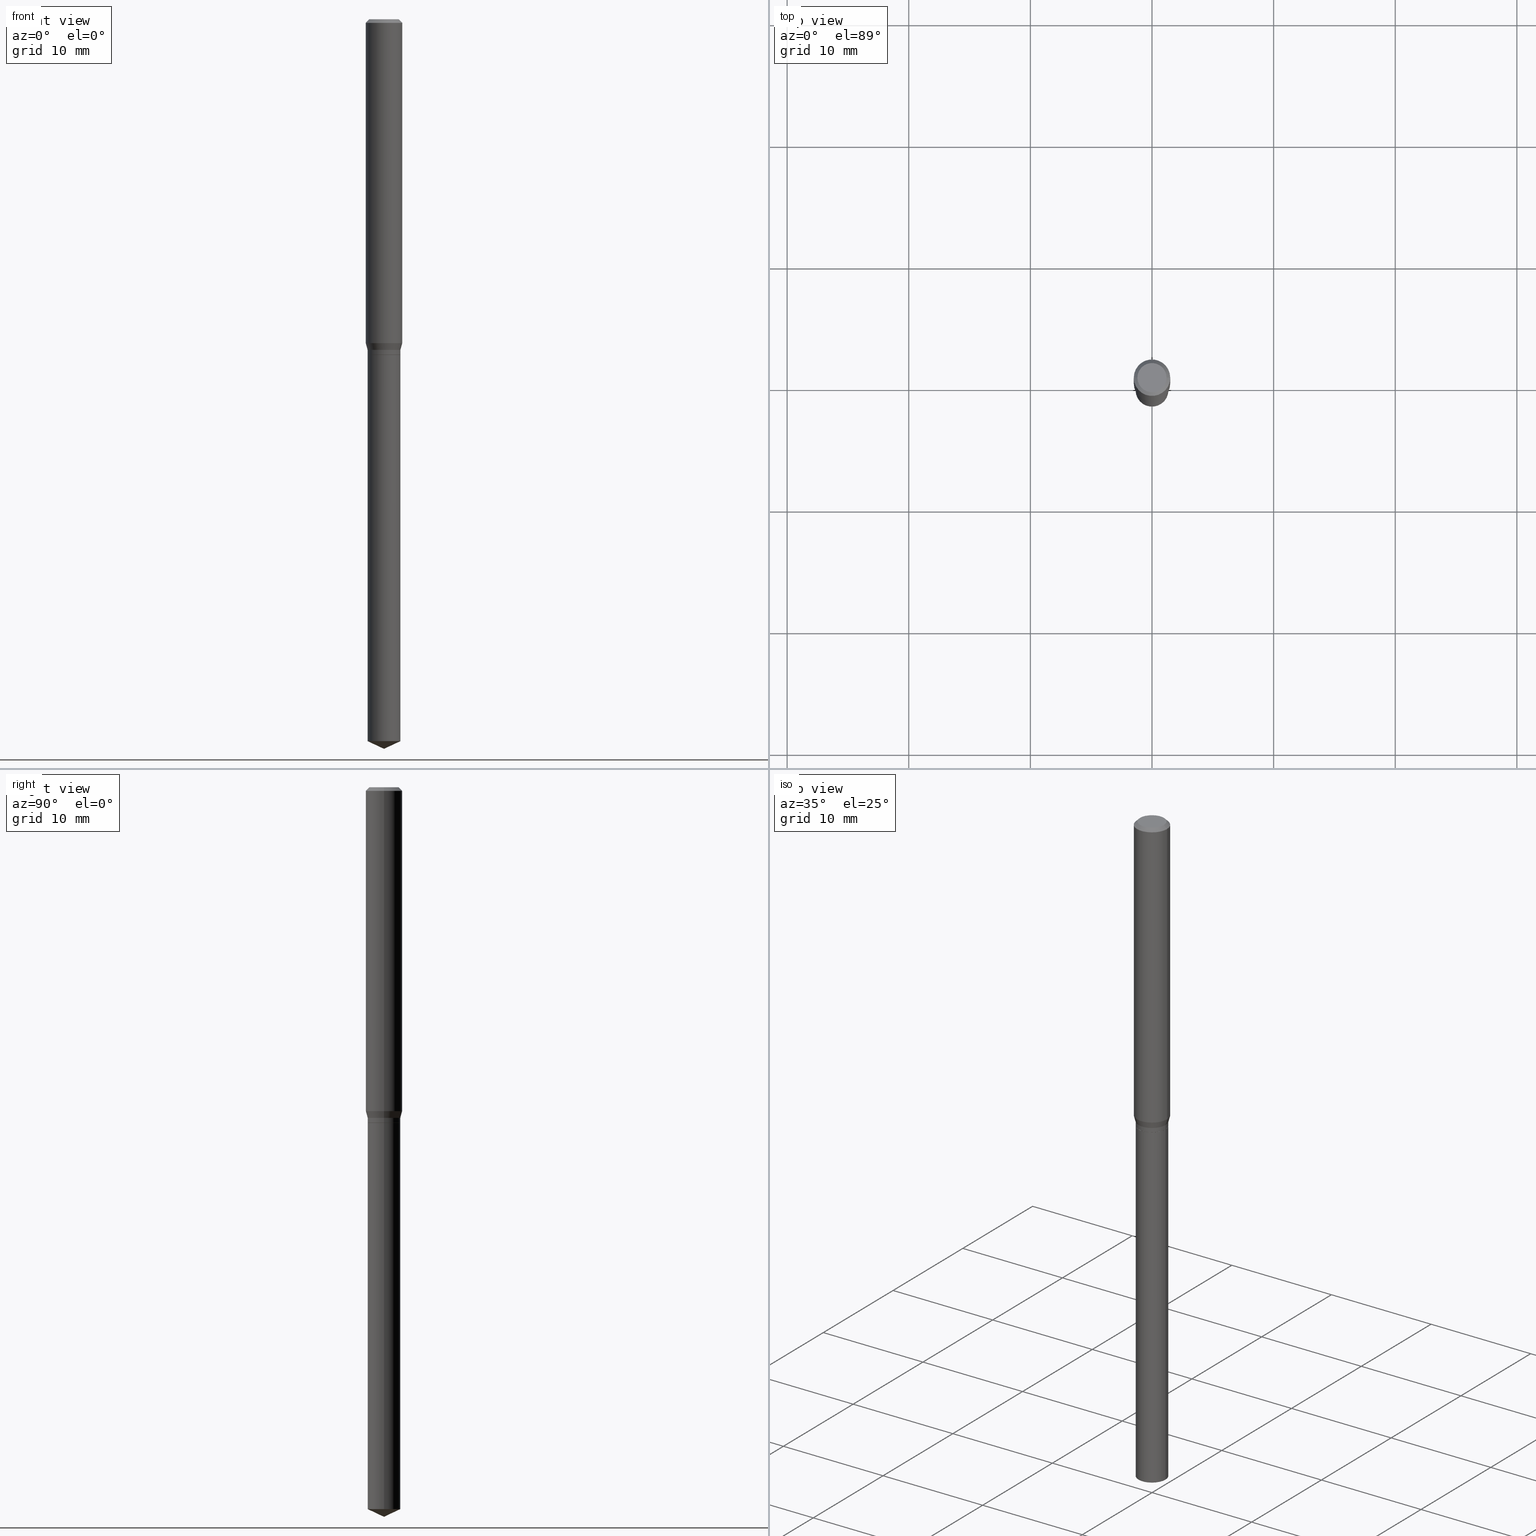
[diagram: canonical four-view strip — front | top / right | iso, engineering-drawing reading convention]
A machine part, canonical four-view strip (front | top / right | iso — engineering-drawing reading convention). The complete STEP part file that produces these views, byte-faithful:
ISO-10303-21;
HEADER;
FILE_DESCRIPTION (( 'STEP AP203' ),
    '1' );
FILE_NAME ('08398.STEP',
    '2024-04-24T14:54:19',
    ( '' ),
    ( '' ),
    'SwSTEP 2.0',
    'SolidWorks 2023',
    '' );
FILE_SCHEMA (( 'CONFIG_CONTROL_DESIGN' ));
ENDSEC;

DATA;
#1 = LINE ( 'NONE', #380, #424 ) ;
#2 = CIRCLE ( 'NONE', #256, 0.05905000000000013016 ) ;
#3 = VECTOR ( 'NONE', #301, 39.37007874015748143 ) ;
#4 = CARTESIAN_POINT ( 'NONE',  ( 0.000000000000000000, 0.000000000000000000, 0.000000000000000000 ) ) ;
#5 = DIRECTION ( 'NONE',  ( 0.7071067811865452413, -7.319954787623248157E-15, -0.7071067811865497932 ) ) ;
#6 = DIRECTION ( 'NONE',  ( -2.445468806185136877E-29, 3.491481338843145188E-15, 1.000000000000000000 ) ) ;
#7 = LINE ( 'NONE', #280, #381 ) ;
#8 = AXIS2_PLACEMENT_3D ( 'NONE', #292, #440, #435 ) ;
#9 = PERSON_AND_ORGANIZATION ( #427, #17 ) ;
#10 = FACE_OUTER_BOUND ( 'NONE', #185, .T. ) ;
#11 = VERTEX_POINT ( 'NONE', #113 ) ;
#12 = CC_DESIGN_DATE_AND_TIME_ASSIGNMENT ( #461, #382, ( #336 ) ) ;
#13 = CARTESIAN_POINT ( 'NONE',  ( 0.05315000000000000280, -4.108775239550612516E-15, -1.070500000000000007 ) ) ;
#14 = CALENDAR_DATE ( 2024, 24, 4 ) ;
#15 = CARTESIAN_POINT ( 'NONE',  ( 4.132873053354867254E-48, -5.900647395337818946E-34, -1.690012582823346072E-19 ) ) ;
#16 = ADVANCED_FACE ( 'NONE', ( #383 ), #152, .T. ) ;
#17 = ORGANIZATION ( 'UNSPECIFIED', 'UNSPECIFIED', '' ) ;
#18 = CARTESIAN_POINT ( 'NONE',  ( -0.05315000000000000280, -3.386861715484185530E-15, -1.070500000000000007 ) ) ;
#19 = CARTESIAN_POINT ( 'NONE',  ( -0.05315000000000000280, -3.386861715484185530E-15, -1.085899999999999643 ) ) ;
#20 = EDGE_LOOP ( 'NONE', ( #296, #406, #270, #483 ) ) ;
#21 = DIRECTION ( 'NONE',  ( 1.000000000000000000, -6.982962677686268288E-15, 0.000000000000000000 ) ) ;
#22 = EDGE_LOOP ( 'NONE', ( #252, #150, #488, #299 ) ) ;
#23 = CARTESIAN_POINT ( 'NONE',  ( 2.656757311039531549E-29, -3.793145326519192049E-15, -1.086399999999999588 ) ) ;
#24 = VECTOR ( 'NONE', #331, 39.37007874015748143 ) ;
#25 = ORIENTED_EDGE ( 'NONE', *, *, #309, .F. ) ;
#26 = DIRECTION ( 'NONE',  ( -2.445468806185136597E-29, 3.491481338843145583E-15, 1.000000000000000000 ) ) ;
#27 = EDGE_LOOP ( 'NONE', ( #441, #323, #479, #418 ) ) ;
#28 = VERTEX_POINT ( 'NONE', #222 ) ;
#29 = PERSON_AND_ORGANIZATION ( #427, #17 ) ;
#30 = AXIS2_PLACEMENT_3D ( 'NONE', #15, #207, #419 ) ;
#31 = CARTESIAN_POINT ( 'NONE',  ( 2.655534576636438748E-29, -3.791399585849770545E-15, -1.085899999999999643 ) ) ;
#32 = VECTOR ( 'NONE', #104, 39.37007874015747433 ) ;
#33 = CONICAL_SURFACE ( 'NONE', #343, 84.42940631927483253, 1.134464013796318227 ) ;
#34 = APPLICATION_PROTOCOL_DEFINITION ( 'international standard', 'config_control_design', 1994, #421 ) ;
#35 = LINE ( 'NONE', #72, #63 ) ;
#36 = FACE_OUTER_BOUND ( 'NONE', #481, .T. ) ;
#37 = CARTESIAN_POINT ( 'NONE',  ( 0.000000000000000000, 0.000000000000000000, 0.000000000000000000 ) ) ;
#38 = EDGE_CURVE ( 'NONE', #448, #28, #1, .T. ) ;
#39 = DIRECTION ( 'NONE',  ( 1.000000000000000000, -6.982962677686265133E-15, 0.000000000000000000 ) ) ;
#40 = DIRECTION ( 'NONE',  ( 1.000000000000000000, -6.982962677686266711E-15, 0.000000000000000000 ) ) ;
#41 = APPROVAL_DATE_TIME ( #84, #378 ) ;
#42 = CARTESIAN_POINT ( 'NONE',  ( -0.05905000000000006771, 4.195754854663396409E-16, -2.904631170795525045E-30 ) ) ;
#43 = EDGE_CURVE ( 'NONE', #229, #59, #297, .T. ) ;
#44 = LINE ( 'NONE', #42, #467 ) ;
#45 = ORIENTED_EDGE ( 'NONE', *, *, #314, .T. ) ;
#46 = CIRCLE ( 'NONE', #308, 0.05315000000000000280 ) ;
#47 = CIRCLE ( 'NONE', #453, 0.05315000000000000280 ) ;
#48 = ADVANCED_FACE ( 'NONE', ( #409 ), #316, .T. ) ;
#49 = DIRECTION ( 'NONE',  ( 2.438088387897960049E-29, -3.491481338843145188E-15, -1.000000000000000000 ) ) ;
#50 = CALENDAR_DATE ( 2024, 24, 4 ) ;
#51 = EDGE_CURVE ( 'NONE', #98, #174, #35, .T. ) ;
#52 = DIRECTION ( 'NONE',  ( 1.000000000000000000, -6.982962677686269077E-15, 0.000000000000000000 ) ) ;
#53 = DIRECTION ( 'NONE',  ( -2.445468806185136597E-29, 3.491481338843145583E-15, 1.000000000000000000 ) ) ;
#54 = AXIS2_PLACEMENT_3D ( 'NONE', #167, #53, #238 ) ;
#55 = FACE_OUTER_BOUND ( 'NONE', #135, .T. ) ;
#56 = LOCAL_TIME ( 10, 54, 19.00000000000000000, #77 ) ;
#57 = ORIENTED_EDGE ( 'NONE', *, *, #223, .F. ) ;
#58 = FACE_OUTER_BOUND ( 'NONE', #255, .T. ) ;
#59 = VERTEX_POINT ( 'NONE', #374 ) ;
#60 = EDGE_CURVE ( 'NONE', #59, #28, #457, .T. ) ;
#61 = DIRECTION ( 'NONE',  ( -1.000000000000000000, 6.982962677686266711E-15, 0.000000000000000000 ) ) ;
#62 = ORIENTED_EDGE ( 'NONE', *, *, #67, .F. ) ;
#63 = VECTOR ( 'NONE', #198, 39.37007874015748854 ) ;
#64 = CARTESIAN_POINT ( 'NONE',  ( 0.000000000000000000, 0.000000000000000000, 0.000000000000000000 ) ) ;
#65 = ORIENTED_EDGE ( 'NONE', *, *, #90, .T. ) ;
#66 = CARTESIAN_POINT ( 'NONE',  ( 2.617874357021189095E-29, -3.737630773231587447E-15, -1.070500000000000007 ) ) ;
#67 = EDGE_CURVE ( 'NONE', #332, #367, #46, .T. ) ;
#68 = VERTEX_POINT ( 'NONE', #232 ) ;
#69 = PRODUCT ( '08398', '08398', '', ( #158 ) ) ;
#70 = CALENDAR_DATE ( 2024, 24, 4 ) ;
#71 = ORIENTED_EDGE ( 'NONE', *, *, #204, .F. ) ;
#72 = CARTESIAN_POINT ( 'NONE',  ( 5.776197320209293305E-29, -8.246878922347511025E-15, -2.362000000000000099 ) ) ;
#73 = CONICAL_SURFACE ( 'NONE', #148, 0.05265000000000000235, 0.7853981633974141952 ) ;
#74 = COORDINATED_UNIVERSAL_TIME_OFFSET ( 5, 0, .BEHIND. ) ;
#75 = CARTESIAN_POINT ( 'NONE',  ( -0.05315000000000000280, -5.599091783645254957E-15, -1.086399999999999588 ) ) ;
#76 = EDGE_CURVE ( 'NONE', #59, #213, #2, .T. ) ;
#77 = COORDINATED_UNIVERSAL_TIME_OFFSET ( 5, 0, .BEHIND. ) ;
#78 = ORIENTED_EDGE ( 'NONE', *, *, #278, .T. ) ;
#79 = CC_DESIGN_PERSON_AND_ORGANIZATION_ASSIGNMENT ( #29, #118, ( #69 ) ) ;
#80 = EDGE_LOOP ( 'NONE', ( #235, #284, #472, #138 ) ) ;
#81 = CIRCLE ( 'NONE', #356, 0.05904999999999999832 ) ;
#82 = LOCAL_TIME ( 10, 54, 19.00000000000000000, #74 ) ;
#83 = DIRECTION ( 'NONE',  ( 1.000000000000000000, -6.982962677686268288E-15, 0.000000000000000000 ) ) ;
#84 = DATE_AND_TIME ( #14, #125 ) ;
#85 = CARTESIAN_POINT ( 'NONE',  ( 0.05315000000000000974, -8.531489635203330655E-15, -2.337215747969062285 ) ) ;
#86 = EDGE_CURVE ( 'NONE', #367, #332, #107, .T. ) ;
#87 = DIRECTION ( 'NONE',  ( -2.445468806185136597E-29, 3.491481338843145583E-15, 1.000000000000000000 ) ) ;
#88 = VECTOR ( 'NONE', #371, 39.37007874015748143 ) ;
#89 = AXIS2_PLACEMENT_3D ( 'NONE', #315, #205, #428 ) ;
#90 = EDGE_CURVE ( 'NONE', #213, #59, #475, .T. ) ;
#91 = CC_DESIGN_APPROVAL ( #378, ( #336 ) ) ;
#92 = PERSON_AND_ORGANIZATION ( #427, #17 ) ;
#93 = CARTESIAN_POINT ( 'NONE',  ( -9.050210213589845843E-28, 1.292130163076976058E-13, 37.00807874015747956 ) ) ;
#94 = CC_DESIGN_DATE_AND_TIME_ASSIGNMENT ( #456, #120, ( #452 ) ) ;
#95 = FACE_OUTER_BOUND ( 'NONE', #477, .T. ) ;
#96 = CARTESIAN_POINT ( 'NONE',  ( 0.05315000000000000280, -4.164289792838217118E-15, -1.086399999999999588 ) ) ;
#97 = DESIGN_CONTEXT ( 'detailed design', #239, 'design' ) ;
#98 = VERTEX_POINT ( 'NONE', #413 ) ;
#99 = AXIS2_PLACEMENT_3D ( 'NONE', #283, #430, #21 ) ;
#100 = DIRECTION ( 'NONE',  ( 1.000000000000000000, -6.982962677686266711E-15, 4.876185090822587894E-29 ) ) ;
#101 = VERTEX_POINT ( 'NONE', #75 ) ;
#102 = CARTESIAN_POINT ( 'NONE',  ( 2.888098660104664642E-31, -4.123439461173780879E-17, -0.01181000000000007565 ) ) ;
#103 = ORIENTED_EDGE ( 'NONE', *, *, #169, .F. ) ;
#104 = DIRECTION ( 'NONE',  ( -0.2588190451025213501, 5.211531920934551042E-15, 0.9659258262890682012 ) ) ;
#105 = ORIENTED_EDGE ( 'NONE', *, *, #175, .F. ) ;
#106 = EDGE_CURVE ( 'NONE', #186, #332, #342, .T. ) ;
#107 = CIRCLE ( 'NONE', #171, 0.05315000000000000280 ) ;
#108 = FACE_OUTER_BOUND ( 'NONE', #399, .T. ) ;
#109 =( GEOMETRIC_REPRESENTATION_CONTEXT ( 3 ) GLOBAL_UNCERTAINTY_ASSIGNED_CONTEXT ( ( #130 ) ) GLOBAL_UNIT_ASSIGNED_CONTEXT ( ( #489, #344, #153 ) ) REPRESENTATION_CONTEXT ( 'NONE', 'WORKASPACE' ) );
#110 = ORIENTED_EDGE ( 'NONE', *, *, #303, .T. ) ;
#111 = CC_DESIGN_PERSON_AND_ORGANIZATION_ASSIGNMENT ( #9, #236, ( #336 ) ) ;
#112 = APPROVAL_ROLE ( '' ) ;
#113 = CARTESIAN_POINT ( 'NONE',  ( -0.04724000000000000421, 3.504923541997677355E-16, -3.380025165670481712E-19 ) ) ;
#114 = DIRECTION ( 'NONE',  ( 1.000000000000000000, -6.982962677686265922E-15, 4.876176775795935793E-29 ) ) ;
#115 = ORIENTED_EDGE ( 'NONE', *, *, #384, .F. ) ;
#116 = CIRCLE ( 'NONE', #54, 0.05265000000000000235 ) ;
#117 = DIRECTION ( 'NONE',  ( 1.000000000000000000, -6.982962677686269077E-15, 0.000000000000000000 ) ) ;
#118 = PERSON_AND_ORGANIZATION_ROLE ( 'design_owner' ) ;
#119 = ORIENTED_EDGE ( 'NONE', *, *, #160, .F. ) ;
#120 = DATE_TIME_ROLE ( 'creation_date' ) ;
#121 = VERTEX_POINT ( 'NONE', #268 ) ;
#122 = DIRECTION ( 'NONE',  ( 1.000000000000000000, -6.982962677686269077E-15, 0.000000000000000000 ) ) ;
#123 = CLOSED_SHELL ( 'NONE', ( #262, #48, #253, #274, #217 ) ) ;
#124 = AXIS2_PLACEMENT_3D ( 'NONE', #201, #392, #52 ) ;
#125 = LOCAL_TIME ( 10, 54, 19.00000000000000000, #353 ) ;
#126 = SHAPE_DEFINITION_REPRESENTATION ( #451, #164 ) ;
#127 = ADVANCED_FACE ( 'NONE', ( #311 ), #234, .T. ) ;
#128 = FACE_OUTER_BOUND ( 'NONE', #22, .T. ) ;
#129 = CARTESIAN_POINT ( 'NONE',  ( 2.888098660104664642E-31, -4.123439461173780879E-17, -0.01181000000000007565 ) ) ;
#130 = UNCERTAINTY_MEASURE_WITH_UNIT (LENGTH_MEASURE( 1.000000000000000082E-05 ), #489, 'distance_accuracy_value', 'NONE');
#131 = CARTESIAN_POINT ( 'NONE',  ( 2.617874357021189095E-29, -3.737630773231587447E-15, -1.070500000000000007 ) ) ;
#132 = SECURITY_CLASSIFICATION_LEVEL ( 'unclassified' ) ;
#133 = CARTESIAN_POINT ( 'NONE',  ( -0.05905000000000013016, -3.241176011838822810E-15, -1.048480900235343238 ) ) ;
#134 = CARTESIAN_POINT ( 'NONE',  ( 2.656757311039531549E-29, -3.793145326519192049E-15, -1.086399999999999588 ) ) ;
#135 = EDGE_LOOP ( 'NONE', ( #45, #288, #361, #415 ) ) ;
#136 = ADVANCED_FACE ( 'NONE', ( #10 ), #307, .F. ) ;
#137 = DIRECTION ( 'NONE',  ( 1.000000000000000000, -6.982962677686267499E-15, 4.876176775795935232E-29 ) ) ;
#138 = ORIENTED_EDGE ( 'NONE', *, *, #43, .F. ) ;
#139 = CLOSED_SHELL ( 'NONE', ( #417, #196, #429, #390, #289, #359, #455, #16, #375, #136, #470, #127 ) ) ;
#140 = CIRCLE ( 'NONE', #203, 0.05315000000000000280 ) ;
#141 = LINE ( 'NONE', #319, #24 ) ;
#142 = EDGE_LOOP ( 'NONE', ( #320, #445, #364 ) ) ;
#143 = LINE ( 'NONE', #212, #32 ) ;
#144 = ORIENTED_EDGE ( 'NONE', *, *, #76, .T. ) ;
#145 = EDGE_CURVE ( 'NONE', #229, #291, #209, .T. ) ;
#146 = DIRECTION ( 'NONE',  ( -2.445468806185136877E-29, 3.491481338843145188E-15, 1.000000000000000000 ) ) ;
#147 = ORIENTED_EDGE ( 'NONE', *, *, #223, .T. ) ;
#148 = AXIS2_PLACEMENT_3D ( 'NONE', #23, #182, #329 ) ;
#149 = CC_DESIGN_APPROVAL ( #346, ( #452 ) ) ;
#150 = ORIENTED_EDGE ( 'NONE', *, *, #397, .T. ) ;
#151 = CARTESIAN_POINT ( 'NONE',  ( -0.05315000000000000280, 3.776534640564932687E-16, -2.614414000470482529E-30 ) ) ;
#152 = CYLINDRICAL_SURFACE ( 'NONE', #410, 0.05905000000000006771 ) ;
#153 =( NAMED_UNIT ( * ) SI_UNIT ( $, .STERADIAN. ) SOLID_ANGLE_UNIT ( ) );
#154 = EDGE_CURVE ( 'NONE', #68, #367, #352, .T. ) ;
#155 = DIRECTION ( 'NONE',  ( -2.445468806185136597E-29, 3.491481338843145583E-15, 1.000000000000000000 ) ) ;
#156 = PERSON_AND_ORGANIZATION_ROLE ( 'creator' ) ;
#157 = CARTESIAN_POINT ( 'NONE',  ( -9.050210213589845843E-28, 1.292130163076976058E-13, 37.00807874015747956 ) ) ;
#158 = MECHANICAL_CONTEXT ( 'NONE', #421, 'mechanical' ) ;
#159 = DIRECTION ( 'NONE',  ( -2.445468806185136597E-29, 3.491481338843145583E-15, 1.000000000000000000 ) ) ;
#160 = EDGE_CURVE ( 'NONE', #121, #28, #81, .T. ) ;
#161 = COORDINATED_UNIVERSAL_TIME_OFFSET ( 5, 0, .BEHIND. ) ;
#162 = LINE ( 'NONE', #277, #372 ) ;
#163 = DIRECTION ( 'NONE',  ( -1.000000000000000000, 6.982962677686265922E-15, -4.876176775795935793E-29 ) ) ;
#164 = ADVANCED_BREP_SHAPE_REPRESENTATION ( '08398', ( #335, #172, #443 ), #109 ) ;
#165 = VECTOR ( 'NONE', #454, 39.37007874015748854 ) ;
#166 = AXIS2_PLACEMENT_3D ( 'NONE', #214, #325, #137 ) ;
#167 = CARTESIAN_POINT ( 'NONE',  ( 2.656757311039531549E-29, -3.793145326519192049E-15, -1.086399999999999588 ) ) ;
#168 = DIRECTION ( 'NONE',  ( 1.000000000000000000, -6.982962677686266711E-15, 0.000000000000000000 ) ) ;
#169 = EDGE_CURVE ( 'NONE', #291, #229, #484, .T. ) ;
#170 = DIRECTION ( 'NONE',  ( 1.000000000000000000, -6.982962677686269077E-15, 0.000000000000000000 ) ) ;
#171 = AXIS2_PLACEMENT_3D ( 'NONE', #31, #155, #192 ) ;
#172 = MANIFOLD_SOLID_BREP ( 'Body-Move/Copy2[2]', #139 ) ;
#173 = FACE_OUTER_BOUND ( 'NONE', #245, .T. ) ;
#174 = VERTEX_POINT ( 'NONE', #85 ) ;
#175 = EDGE_CURVE ( 'NONE', #98, #403, #162, .T. ) ;
#176 = FACE_OUTER_BOUND ( 'NONE', #80, .T. ) ;
#177 = ORIENTED_EDGE ( 'NONE', *, *, #51, .T. ) ;
#178 = DIRECTION ( 'NONE',  ( -2.445468806185136597E-29, 3.491481338843145583E-15, 1.000000000000000000 ) ) ;
#179 = ORIENTED_EDGE ( 'NONE', *, *, #38, .F. ) ;
#180 = AXIS2_PLACEMENT_3D ( 'NONE', #462, #389, #276 ) ;
#181 = AXIS2_PLACEMENT_3D ( 'NONE', #298, #482, #379 ) ;
#182 = DIRECTION ( 'NONE',  ( -2.445468806185136597E-29, 3.491481338843145583E-15, 1.000000000000000000 ) ) ;
#183 = ORIENTED_EDGE ( 'NONE', *, *, #60, .F. ) ;
#184 = CARTESIAN_POINT ( 'NONE',  ( 8.265746106709734507E-48, -1.180129479067563789E-33, -3.380025165646692144E-19 ) ) ;
#185 = EDGE_LOOP ( 'NONE', ( #401, #110 ) ) ;
#186 = VERTEX_POINT ( 'NONE', #208 ) ;
#187 = CONICAL_SURFACE ( 'NONE', #180, 0.05904999999999999832, 0.7853981633974450594 ) ;
#188 = DIRECTION ( 'NONE',  ( 1.000000000000000000, 0.000000000000000000, 0.000000000000000000 ) ) ;
#189 = CIRCLE ( 'NONE', #224, 0.04724000000000000421 ) ;
#190 = CARTESIAN_POINT ( 'NONE',  ( 2.564027335406442379E-29, -3.660751497305162698E-15, -1.048480900235343238 ) ) ;
#191 = CARTESIAN_POINT ( 'NONE',  ( 0.05315000000000000280, -4.108775239550612516E-15, -1.070500000000000007 ) ) ;
#192 = DIRECTION ( 'NONE',  ( 1.000000000000000000, -6.982962677686269077E-15, 0.000000000000000000 ) ) ;
#193 = DIRECTION ( 'NONE',  ( -2.438088387897960049E-29, 3.491481338843145188E-15, 1.000000000000000000 ) ) ;
#194 = AXIS2_PLACEMENT_3D ( 'NONE', #157, #264, #40 ) ;
#195 = ORIENTED_EDGE ( 'NONE', *, *, #303, .F. ) ;
#196 = ADVANCED_FACE ( 'NONE', ( #95 ), #187, .T. ) ;
#197 = CC_DESIGN_APPROVAL ( #199, ( #318 ) ) ;
#198 = DIRECTION ( 'NONE',  ( 0.9063077870366516020, -4.853149677051404033E-15, 0.4226182617406958886 ) ) ;
#199 = APPROVAL ( #269, 'UNSPECIFIED' ) ;
#200 = CYLINDRICAL_SURFACE ( 'NONE', #124, 0.05315000000000000280 ) ;
#201 = CARTESIAN_POINT ( 'NONE',  ( 2.656757311039531549E-29, -3.793145326519192838E-15, -1.086399999999999810 ) ) ;
#202 = VECTOR ( 'NONE', #450, 39.37007874015747433 ) ;
#203 = AXIS2_PLACEMENT_3D ( 'NONE', #259, #355, #471 ) ;
#204 = EDGE_CURVE ( 'NONE', #186, #68, #116, .T. ) ;
#205 = DIRECTION ( 'NONE',  ( -2.445468806185136597E-29, 3.491481338843145583E-15, 1.000000000000000000 ) ) ;
#206 = APPROVAL_ROLE ( '' ) ;
#207 = DIRECTION ( 'NONE',  ( 2.438088387897960049E-29, -3.491481338843145188E-15, -1.000000000000000000 ) ) ;
#208 = CARTESIAN_POINT ( 'NONE',  ( -0.05265000000000000235, -3.416395348967387886E-15, -1.086399999999999588 ) ) ;
#209 = CIRCLE ( 'NONE', #327, 0.05315000000000000280 ) ;
#210 = DIRECTION ( 'NONE',  ( 1.000000000000000000, -6.982962677686269077E-15, 0.000000000000000000 ) ) ;
#211 = EDGE_LOOP ( 'NONE', ( #436, #334 ) ) ;
#212 = CARTESIAN_POINT ( 'NONE',  ( -0.05315000000000000280, -3.359977309175093981E-15, -1.070500000000000007 ) ) ;
#213 = VERTEX_POINT ( 'NONE', #133 ) ;
#214 = CARTESIAN_POINT ( 'NONE',  ( 0.000000000000000000, 0.000000000000000000, 0.000000000000000000 ) ) ;
#215 = ORIENTED_EDGE ( 'NONE', *, *, #411, .T. ) ;
#216 = CIRCLE ( 'NONE', #99, 0.05265000000000000235 ) ;
#217 = ADVANCED_FACE ( 'NONE', ( #426 ), #386, .F. ) ;
#218 = DIRECTION ( 'NONE',  ( 1.000000000000000000, -6.982962677686267499E-15, 4.876176775795935232E-29 ) ) ;
#219 = ORIENTED_EDGE ( 'NONE', *, *, #160, .T. ) ;
#220 = DATE_AND_TIME ( #70, #226 ) ;
#221 = ORIENTED_EDGE ( 'NONE', *, *, #43, .T. ) ;
#222 = CARTESIAN_POINT ( 'NONE',  ( 0.05904999999999999832, -4.535783407291118600E-16, -0.01181000000000007565 ) ) ;
#223 = EDGE_CURVE ( 'NONE', #28, #121, #247, .T. ) ;
#224 = AXIS2_PLACEMENT_3D ( 'NONE', #184, #26, #476 ) ;
#225 = PLANE ( 'NONE',  #425 ) ;
#226 = LOCAL_TIME ( 10, 54, 19.00000000000000000, #416 ) ;
#227 = CARTESIAN_POINT ( 'NONE',  ( 0.05905000000000006771, -4.123439461173745257E-16, 2.879382386107503723E-30 ) ) ;
#228 = PERSON_AND_ORGANIZATION ( #427, #17 ) ;
#229 = VERTEX_POINT ( 'NONE', #13 ) ;
#230 = CALENDAR_DATE ( 2024, 24, 4 ) ;
#231 = EDGE_CURVE ( 'NONE', #213, #121, #44, .T. ) ;
#232 = CARTESIAN_POINT ( 'NONE',  ( 0.05265000000000000235, -4.160798311499374111E-15, -1.086399999999999588 ) ) ;
#233 = PERSON_AND_ORGANIZATION ( #427, #17 ) ;
#234 = CONICAL_SURFACE ( 'NONE', #246, 0.05265000000000000235, 0.7853981633974141952 ) ;
#235 = ORIENTED_EDGE ( 'NONE', *, *, #145, .T. ) ;
#236 = PERSON_AND_ORGANIZATION_ROLE ( 'classification_officer' ) ;
#237 = DIRECTION ( 'NONE',  ( -2.445468806185136597E-29, 3.491481338843145583E-15, 1.000000000000000000 ) ) ;
#238 = DIRECTION ( 'NONE',  ( 1.000000000000000000, -6.982962677686268288E-15, 0.000000000000000000 ) ) ;
#239 = APPLICATION_CONTEXT ( 'configuration controlled 3d designs of mechanical parts and assemblies' ) ;
#240 = DIRECTION ( 'NONE',  ( 1.000000000000000000, -6.982962677686269077E-15, 0.000000000000000000 ) ) ;
#241 = VECTOR ( 'NONE', #468, 39.37007874015748854 ) ;
#242 = FACE_OUTER_BOUND ( 'NONE', #20, .T. ) ;
#243 = CYLINDRICAL_SURFACE ( 'NONE', #388, 0.05315000000000000280 ) ;
#244 = DIRECTION ( 'NONE',  ( -2.445468806185136597E-29, 3.491481338843145583E-15, 1.000000000000000000 ) ) ;
#245 = EDGE_LOOP ( 'NONE', ( #179, #25, #215, #219 ) ) ;
#246 = AXIS2_PLACEMENT_3D ( 'NONE', #464, #273, #83 ) ;
#247 = CIRCLE ( 'NONE', #89, 0.05904999999999999832 ) ;
#248 = AXIS2_PLACEMENT_3D ( 'NONE', #102, #393, #61 ) ;
#249 = DIRECTION ( 'NONE',  ( 1.000000000000000000, -6.982962677686269077E-15, 0.000000000000000000 ) ) ;
#250 = ORIENTED_EDGE ( 'NONE', *, *, #154, .T. ) ;
#251 = DIRECTION ( 'NONE',  ( -2.445468806185136597E-29, 3.491481338843145583E-15, 1.000000000000000000 ) ) ;
#252 = ORIENTED_EDGE ( 'NONE', *, *, #366, .F. ) ;
#253 = ADVANCED_FACE ( 'NONE', ( #271 ), #33, .T. ) ;
#254 = CYLINDRICAL_SURFACE ( 'NONE', #412, 0.05905000000000006771 ) ;
#255 = EDGE_LOOP ( 'NONE', ( #474, #396, #78, #103 ) ) ;
#256 = AXIS2_PLACEMENT_3D ( 'NONE', #490, #159, #39 ) ;
#257 = CONICAL_SURFACE ( 'NONE', #300, 0.05315000000000000280, 0.2617993877991500740 ) ;
#258 = CC_DESIGN_PERSON_AND_ORGANIZATION_ASSIGNMENT ( #233, #306, ( #318 ) ) ;
#259 = CARTESIAN_POINT ( 'NONE',  ( 2.656757311039531549E-29, -3.793145326519192049E-15, -1.086399999999999588 ) ) ;
#260 = ORIENTED_EDGE ( 'NONE', *, *, #90, .F. ) ;
#261 = APPLICATION_PROTOCOL_DEFINITION ( 'international standard', 'config_control_design', 1994, #239 ) ;
#262 = ADVANCED_FACE ( 'NONE', ( #242 ), #243, .T. ) ;
#263 = DIRECTION ( 'NONE',  ( -2.445468806185136597E-29, 3.491481338843145583E-15, 1.000000000000000000 ) ) ;
#264 = DIRECTION ( 'NONE',  ( -2.445468806185136597E-29, 3.491481338843145583E-15, 1.000000000000000000 ) ) ;
#265 = CONICAL_SURFACE ( 'NONE', #248, 0.05904999999999999832, 0.7853981633974450594 ) ;
#266 = DIRECTION ( 'NONE',  ( 1.000000000000000000, -6.982962677686265133E-15, 0.000000000000000000 ) ) ;
#267 =( LENGTH_UNIT ( ) NAMED_UNIT ( * ) SI_UNIT ( $, .METRE. ) );
#268 = CARTESIAN_POINT ( 'NONE',  ( -0.05904999999999999832, -1.431417460492110129E-15, -0.01181000000000007565 ) ) ;
#269 = APPROVAL_STATUS ( 'not_yet_approved' ) ;
#270 = ORIENTED_EDGE ( 'NONE', *, *, #439, .F. ) ;
#271 = FACE_OUTER_BOUND ( 'NONE', #463, .T. ) ;
#272 = VECTOR ( 'NONE', #146, 39.37007874015748143 ) ;
#273 = DIRECTION ( 'NONE',  ( -2.445468806185136597E-29, 3.491481338843145583E-15, 1.000000000000000000 ) ) ;
#274 = ADVANCED_FACE ( 'NONE', ( #128 ), #200, .T. ) ;
#275 = EDGE_LOOP ( 'NONE', ( #282, #65, #326, #119 ) ) ;
#276 = DIRECTION ( 'NONE',  ( -1.000000000000000000, 6.982962677686266711E-15, 0.000000000000000000 ) ) ;
#277 = CARTESIAN_POINT ( 'NONE',  ( 5.776197320209293305E-29, -8.246878922347511025E-15, -2.362000000000000099 ) ) ;
#278 = EDGE_CURVE ( 'NONE', #367, #229, #7, .T. ) ;
#279 = PERSON_AND_ORGANIZATION ( #427, #17 ) ;
#280 = CARTESIAN_POINT ( 'NONE',  ( 0.05315000000000000280, -3.711444663190251187E-16, 2.591687956335539675E-30 ) ) ;
#281 = CARTESIAN_POINT ( 'NONE',  ( 0.05315000000000000280, -4.164289792838217907E-15, -1.086399999999999810 ) ) ;
#282 = ORIENTED_EDGE ( 'NONE', *, *, #231, .F. ) ;
#283 = CARTESIAN_POINT ( 'NONE',  ( 2.656757311039531549E-29, -3.793145326519192049E-15, -1.086399999999999588 ) ) ;
#284 = ORIENTED_EDGE ( 'NONE', *, *, #384, .T. ) ;
#285 = VECTOR ( 'NONE', #432, 39.37007874015748143 ) ;
#286 = APPROVAL_PERSON_ORGANIZATION ( #92, #378, #206 ) ;
#287 = CYLINDRICAL_SURFACE ( 'NONE', #460, 0.05315000000000000280 ) ;
#288 = ORIENTED_EDGE ( 'NONE', *, *, #106, .T. ) ;
#289 = ADVANCED_FACE ( 'NONE', ( #350 ), #473, .T. ) ;
#290 = DIRECTION ( 'NONE',  ( -2.445468806185136597E-29, 3.491481338843145583E-15, 1.000000000000000000 ) ) ;
#291 = VERTEX_POINT ( 'NONE', #18 ) ;
#292 = CARTESIAN_POINT ( 'NONE',  ( 5.715588204983003350E-29, -8.160345168884305586E-15, -2.337215747969062285 ) ) ;
#293 = ORIENTED_EDGE ( 'NONE', *, *, #204, .T. ) ;
#294 = APPROVAL_PERSON_ORGANIZATION ( #341, #346, #337 ) ;
#295 = DATE_AND_TIME ( #449, #82 ) ;
#296 = ORIENTED_EDGE ( 'NONE', *, *, #423, .T. ) ;
#297 = LINE ( 'NONE', #191, #202 ) ;
#298 = CARTESIAN_POINT ( 'NONE',  ( 2.617874357021189095E-29, -3.737630773231587447E-15, -1.070500000000000007 ) ) ;
#299 = ORIENTED_EDGE ( 'NONE', *, *, #447, .F. ) ;
#300 = AXIS2_PLACEMENT_3D ( 'NONE', #66, #251, #249 ) ;
#301 = DIRECTION ( 'NONE',  ( -2.445468806185136877E-29, 3.491481338843145188E-15, 1.000000000000000000 ) ) ;
#302 = CARTESIAN_POINT ( 'NONE',  ( -0.05265000000000000235, -3.419044576141499482E-15, -1.086399999999999588 ) ) ;
#303 = EDGE_CURVE ( 'NONE', #448, #11, #485, .T. ) ;
#304 = LINE ( 'NONE', #151, #3 ) ;
#305 = DIRECTION ( 'NONE',  ( 1.000000000000000000, -6.982962677686266711E-15, 4.876176775795936353E-29 ) ) ;
#306 = PERSON_AND_ORGANIZATION_ROLE ( 'design_supplier' ) ;
#307 = PLANE ( 'NONE',  #30 ) ;
#308 = AXIS2_PLACEMENT_3D ( 'NONE', #347, #340, #117 ) ;
#309 = EDGE_CURVE ( 'NONE', #11, #448, #189, .T. ) ;
#310 = DIRECTION ( 'NONE',  ( -2.445468806185136597E-29, 3.491481338843145583E-15, 1.000000000000000000 ) ) ;
#311 = FACE_OUTER_BOUND ( 'NONE', #431, .T. ) ;
#312 = PERSON_AND_ORGANIZATION_ROLE ( 'creator' ) ;
#313 = CARTESIAN_POINT ( 'NONE',  ( 2.656757311039531549E-29, -3.793145326519192838E-15, -1.086399999999999810 ) ) ;
#314 = EDGE_CURVE ( 'NONE', #68, #186, #216, .T. ) ;
#315 = CARTESIAN_POINT ( 'NONE',  ( 2.888098660104664642E-31, -4.123439461173780879E-17, -0.01181000000000007565 ) ) ;
#316 = CONICAL_SURFACE ( 'NONE', #194, 84.42940631927483253, 1.134464013796318227 ) ;
#317 = CIRCLE ( 'NONE', #349, 0.05315000000000000280 ) ;
#318 = PRODUCT_DEFINITION_FORMATION_WITH_SPECIFIED_SOURCE ( 'ANY', '', #69, .NOT_KNOWN. ) ;
#319 = CARTESIAN_POINT ( 'NONE',  ( -0.05315000000000000280, -3.415491862462699372E-15, -1.086399999999999810 ) ) ;
#320 = ORIENTED_EDGE ( 'NONE', *, *, #51, .F. ) ;
#321 = DIMENSIONAL_EXPONENTS ( 1.000000000000000000, 0.000000000000000000, 0.000000000000000000, 0.000000000000000000, 0.000000000000000000, 0.000000000000000000, 0.000000000000000000 ) ;
#322 = CARTESIAN_POINT ( 'NONE',  ( -0.05904999999999999832, 3.711095515056362547E-16, -0.01181000000000007565 ) ) ;
#323 = ORIENTED_EDGE ( 'NONE', *, *, #486, .T. ) ;
#324 = EDGE_CURVE ( 'NONE', #174, #330, #480, .T. ) ;
#325 = DIRECTION ( 'NONE',  ( -2.445468806185136597E-29, 3.491481338843145583E-15, 1.000000000000000000 ) ) ;
#326 = ORIENTED_EDGE ( 'NONE', *, *, #60, .T. ) ;
#327 = AXIS2_PLACEMENT_3D ( 'NONE', #354, #237, #170 ) ;
#328 = CONICAL_SURFACE ( 'NONE', #181, 0.05315000000000000280, 0.2617993877991500740 ) ;
#329 = DIRECTION ( 'NONE',  ( 1.000000000000000000, -6.982962677686268288E-15, 0.000000000000000000 ) ) ;
#330 = VERTEX_POINT ( 'NONE', #96 ) ;
#331 = DIRECTION ( 'NONE',  ( -2.445468806185136877E-29, 3.491481338843145188E-15, 1.000000000000000000 ) ) ;
#332 = VERTEX_POINT ( 'NONE', #19 ) ;
#333 = CARTESIAN_POINT ( 'NONE',  ( 0.04724000000000000421, -3.852183633974369345E-16, -3.380025165621689721E-19 ) ) ;
#334 = ORIENTED_EDGE ( 'NONE', *, *, #447, .T. ) ;
#335 = MANIFOLD_SOLID_BREP ( 'Body-Move/Copy2[1]', #123 ) ;
#336 = SECURITY_CLASSIFICATION ( '', '', #132 ) ;
#337 = APPROVAL_ROLE ( '' ) ;
#338 = DIRECTION ( 'NONE',  ( -2.445468806185136597E-29, 3.491481338843145583E-15, 1.000000000000000000 ) ) ;
#339 = DIRECTION ( 'NONE',  ( 0.000000000000000000, 0.000000000000000000, 1.000000000000000000 ) ) ;
#340 = DIRECTION ( 'NONE',  ( -2.445468806185136597E-29, 3.491481338843145583E-15, 1.000000000000000000 ) ) ;
#341 = PERSON_AND_ORGANIZATION ( #427, #17 ) ;
#342 = LINE ( 'NONE', #302, #165 ) ;
#343 = AXIS2_PLACEMENT_3D ( 'NONE', #93, #348, #168 ) ;
#344 =( NAMED_UNIT ( * ) PLANE_ANGLE_UNIT ( ) SI_UNIT ( $, .RADIAN. ) );
#345 = EDGE_LOOP ( 'NONE', ( #115, #434, #221, #260 ) ) ;
#346 = APPROVAL ( #376, 'UNSPECIFIED' ) ;
#347 = CARTESIAN_POINT ( 'NONE',  ( 2.655534576636438748E-29, -3.791399585849770545E-15, -1.085899999999999643 ) ) ;
#348 = DIRECTION ( 'NONE',  ( -2.445468806185136597E-29, 3.491481338843145583E-15, 1.000000000000000000 ) ) ;
#349 = AXIS2_PLACEMENT_3D ( 'NONE', #478, #290, #437 ) ;
#350 = FACE_OUTER_BOUND ( 'NONE', #27, .T. ) ;
#351 = ORIENTED_EDGE ( 'NONE', *, *, #314, .F. ) ;
#352 = LINE ( 'NONE', #420, #241 ) ;
#353 = COORDINATED_UNIVERSAL_TIME_OFFSET ( 5, 0, .BEHIND. ) ;
#354 = CARTESIAN_POINT ( 'NONE',  ( 2.617874357021189095E-29, -3.737630773231587447E-15, -1.070500000000000007 ) ) ;
#355 = DIRECTION ( 'NONE',  ( -2.445468806185136597E-29, 3.491481338843145583E-15, 1.000000000000000000 ) ) ;
#356 = AXIS2_PLACEMENT_3D ( 'NONE', #129, #87, #387 ) ;
#357 = CARTESIAN_POINT ( 'NONE',  ( 0.05315000000000000280, -4.162544052168795615E-15, -1.085899999999999643 ) ) ;
#358 = ORIENTED_EDGE ( 'NONE', *, *, #231, .T. ) ;
#359 = ADVANCED_FACE ( 'NONE', ( #58 ), #287, .T. ) ;
#360 = CARTESIAN_POINT ( 'NONE',  ( 8.265746106709734507E-48, -1.180129479067563789E-33, -3.380025165646692144E-19 ) ) ;
#361 = ORIENTED_EDGE ( 'NONE', *, *, #86, .F. ) ;
#362 = PRODUCT_RELATED_PRODUCT_CATEGORY ( 'detail', '', ( #69 ) ) ;
#363 = LINE ( 'NONE', #322, #285 ) ;
#364 = ORIENTED_EDGE ( 'NONE', *, *, #423, .F. ) ;
#365 = DIRECTION ( 'NONE',  ( 1.000000000000000000, -6.982962677686266711E-15, 4.876176775795936353E-29 ) ) ;
#366 = EDGE_CURVE ( 'NONE', #403, #101, #141, .T. ) ;
#367 = VERTEX_POINT ( 'NONE', #357 ) ;
#368 = FACE_OUTER_BOUND ( 'NONE', #345, .T. ) ;
#369 = ORIENTED_EDGE ( 'NONE', *, *, #106, .F. ) ;
#370 = APPROVAL_DATE_TIME ( #220, #199 ) ;
#371 = DIRECTION ( 'NONE',  ( -2.445468806185136877E-29, 3.491481338843145188E-15, 1.000000000000000000 ) ) ;
#372 = VECTOR ( 'NONE', #458, 39.37007874015748854 ) ;
#373 = LOCAL_TIME ( 10, 54, 19.00000000000000000, #161 ) ;
#374 = CARTESIAN_POINT ( 'NONE',  ( 0.05905000000000013016, -4.073095443422537618E-15, -1.048480900235343238 ) ) ;
#375 = ADVANCED_FACE ( 'NONE', ( #173 ), #265, .T. ) ;
#376 = APPROVAL_STATUS ( 'not_yet_approved' ) ;
#377 = ORIENTED_EDGE ( 'NONE', *, *, #411, .F. ) ;
#378 = APPROVAL ( #385, 'UNSPECIFIED' ) ;
#379 = DIRECTION ( 'NONE',  ( 1.000000000000000000, -6.982962677686269077E-15, 0.000000000000000000 ) ) ;
#380 = CARTESIAN_POINT ( 'NONE',  ( 0.05904999999999999832, -4.463468013801466955E-16, -0.01181000000000007565 ) ) ;
#381 = VECTOR ( 'NONE', #6, 39.37007874015748143 ) ;
#382 = DATE_TIME_ROLE ( 'classification_date' ) ;
#383 = FACE_OUTER_BOUND ( 'NONE', #275, .T. ) ;
#384 = EDGE_CURVE ( 'NONE', #291, #213, #143, .T. ) ;
#385 = APPROVAL_STATUS ( 'not_yet_approved' ) ;
#386 = PLANE ( 'NONE',  #459 ) ;
#387 = DIRECTION ( 'NONE',  ( 1.000000000000000000, -6.982962677686266711E-15, 0.000000000000000000 ) ) ;
#388 = AXIS2_PLACEMENT_3D ( 'NONE', #313, #391, #122 ) ;
#389 = DIRECTION ( 'NONE',  ( 2.445468806185136597E-29, -3.491481338843145583E-15, -1.000000000000000000 ) ) ;
#390 = ADVANCED_FACE ( 'NONE', ( #176 ), #257, .T. ) ;
#391 = DIRECTION ( 'NONE',  ( -2.445468806185136597E-29, 3.491481338843145583E-15, 1.000000000000000000 ) ) ;
#392 = DIRECTION ( 'NONE',  ( -2.445468806185136597E-29, 3.491481338843145583E-15, 1.000000000000000000 ) ) ;
#393 = DIRECTION ( 'NONE',  ( 2.445468806185136597E-29, -3.491481338843145583E-15, -1.000000000000000000 ) ) ;
#394 = AXIS2_PLACEMENT_3D ( 'NONE', #131, #310, #240 ) ;
#395 = AXIS2_PLACEMENT_3D ( 'NONE', #360, #398, #100 ) ;
#396 = ORIENTED_EDGE ( 'NONE', *, *, #67, .T. ) ;
#397 = EDGE_CURVE ( 'NONE', #403, #174, #433, .T. ) ;
#398 = DIRECTION ( 'NONE',  ( -2.445468806185136597E-29, 3.491481338843145583E-15, 1.000000000000000000 ) ) ;
#399 = EDGE_LOOP ( 'NONE', ( #144, #358, #57, #183 ) ) ;
#400 = CARTESIAN_POINT ( 'NONE',  ( -0.05315000000000000974, -7.782691704827812120E-15, -2.337215747969062285 ) ) ;
#401 = ORIENTED_EDGE ( 'NONE', *, *, #309, .T. ) ;
#402 = DIRECTION ( 'NONE',  ( -2.445468806185136597E-29, 3.491481338843145583E-15, 1.000000000000000000 ) ) ;
#403 = VERTEX_POINT ( 'NONE', #400 ) ;
#404 = APPROVAL_PERSON_ORGANIZATION ( #444, #199, #112 ) ;
#405 = CARTESIAN_POINT ( 'NONE',  ( 0.000000000000000000, 0.000000000000000000, 0.000000000000000000 ) ) ;
#406 = ORIENTED_EDGE ( 'NONE', *, *, #366, .T. ) ;
#407 = ORIENTED_EDGE ( 'NONE', *, *, #38, .T. ) ;
#408 = LENGTH_MEASURE_WITH_UNIT ( LENGTH_MEASURE( 0.02539999999999999897 ), #267 );
#409 = FACE_OUTER_BOUND ( 'NONE', #142, .T. ) ;
#410 = AXIS2_PLACEMENT_3D ( 'NONE', #37, #263, #305 ) ;
#411 = EDGE_CURVE ( 'NONE', #11, #121, #363, .T. ) ;
#412 = AXIS2_PLACEMENT_3D ( 'NONE', #405, #402, #365 ) ;
#413 = CARTESIAN_POINT ( 'NONE',  ( 5.776197320209293305E-29, -8.246878922347511025E-15, -2.362000000000000099 ) ) ;
#414 = CC_DESIGN_PERSON_AND_ORGANIZATION_ASSIGNMENT ( #228, #156, ( #452 ) ) ;
#415 = ORIENTED_EDGE ( 'NONE', *, *, #154, .F. ) ;
#416 = COORDINATED_UNIVERSAL_TIME_OFFSET ( 5, 0, .BEHIND. ) ;
#417 = ADVANCED_FACE ( 'NONE', ( #55 ), #73, .T. ) ;
#418 = ORIENTED_EDGE ( 'NONE', *, *, #278, .F. ) ;
#419 = DIRECTION ( 'NONE',  ( -1.000000000000000000, 6.982962677686265922E-15, -4.876176775795935793E-29 ) ) ;
#420 = CARTESIAN_POINT ( 'NONE',  ( 0.05265000000000000235, -4.160798311499374111E-15, -1.086399999999999588 ) ) ;
#421 = APPLICATION_CONTEXT ( 'configuration controlled 3d designs of mechanical parts and assemblies' ) ;
#422 = CARTESIAN_POINT ( 'NONE',  ( 4.606389756933866834E-29, -1.001160697810956302E-15, -1.086399999999999588 ) ) ;
#423 = EDGE_CURVE ( 'NONE', #174, #403, #317, .T. ) ;
#424 = VECTOR ( 'NONE', #5, 39.37007874015748143 ) ;
#425 = AXIS2_PLACEMENT_3D ( 'NONE', #487, #193, #114 ) ;
#426 = FACE_OUTER_BOUND ( 'NONE', #211, .T. ) ;
#427 = PERSON ( 'UNSPECIFIED', 'UNSPECIFIED', 'UNSPECIFIED', ('UNSPECIFIED'), ('UNSPECIFIED'), ('UNSPECIFIED') ) ;
#428 = DIRECTION ( 'NONE',  ( 1.000000000000000000, -6.982962677686266711E-15, 0.000000000000000000 ) ) ;
#429 = ADVANCED_FACE ( 'NONE', ( #108 ), #254, .T. ) ;
#430 = DIRECTION ( 'NONE',  ( -2.445468806185136597E-29, 3.491481338843145583E-15, 1.000000000000000000 ) ) ;
#431 = EDGE_LOOP ( 'NONE', ( #369, #293, #250, #62 ) ) ;
#432 = DIRECTION ( 'NONE',  ( -0.7071067811865452413, 2.468850131082233000E-15, -0.7071067811865497932 ) ) ;
#433 = CIRCLE ( 'NONE', #8, 0.05315000000000000280 ) ;
#434 = ORIENTED_EDGE ( 'NONE', *, *, #169, .T. ) ;
#435 = DIRECTION ( 'NONE',  ( 1.000000000000000000, -6.982962677686260400E-15, 0.000000000000000000 ) ) ;
#436 = ORIENTED_EDGE ( 'NONE', *, *, #439, .T. ) ;
#437 = DIRECTION ( 'NONE',  ( 1.000000000000000000, -6.982962677686260400E-15, 0.000000000000000000 ) ) ;
#438 = ORIENTED_EDGE ( 'NONE', *, *, #397, .F. ) ;
#439 = EDGE_CURVE ( 'NONE', #330, #101, #140, .T. ) ;
#440 = DIRECTION ( 'NONE',  ( -2.445468806185136597E-29, 3.491481338843145583E-15, 1.000000000000000000 ) ) ;
#441 = ORIENTED_EDGE ( 'NONE', *, *, #86, .T. ) ;
#442 = AXIS2_PLACEMENT_3D ( 'NONE', #190, #338, #266 ) ;
#443 = AXIS2_PLACEMENT_3D ( 'NONE', #4, #339, #188 ) ;
#444 = PERSON_AND_ORGANIZATION ( #427, #17 ) ;
#445 = ORIENTED_EDGE ( 'NONE', *, *, #175, .T. ) ;
#446 = APPROVAL_DATE_TIME ( #295, #346 ) ;
#447 = EDGE_CURVE ( 'NONE', #101, #330, #47, .T. ) ;
#448 = VERTEX_POINT ( 'NONE', #333 ) ;
#449 = CALENDAR_DATE ( 2024, 24, 4 ) ;
#450 = DIRECTION ( 'NONE',  ( 0.2588190451025213501, 1.565188264969621968E-15, 0.9659258262890682012 ) ) ;
#451 = PRODUCT_DEFINITION_SHAPE ( 'NONE', 'NONE',  #452 ) ;
#452 = PRODUCT_DEFINITION ( 'UNKNOWN', '', #318, #97 ) ;
#453 = AXIS2_PLACEMENT_3D ( 'NONE', #134, #244, #210 ) ;
#454 = DIRECTION ( 'NONE',  ( -0.7071067811865232589, 7.493145998870265808E-15, 0.7071067811865715536 ) ) ;
#455 = ADVANCED_FACE ( 'NONE', ( #368 ), #328, .T. ) ;
#456 = DATE_AND_TIME ( #230, #56 ) ;
#457 = LINE ( 'NONE', #227, #88 ) ;
#458 = DIRECTION ( 'NONE',  ( -0.9063077870366516020, 7.915267918739014631E-15, 0.4226182617406958886 ) ) ;
#459 = AXIS2_PLACEMENT_3D ( 'NONE', #422, #49, #163 ) ;
#460 = AXIS2_PLACEMENT_3D ( 'NONE', #64, #178, #218 ) ;
#461 = DATE_AND_TIME ( #50, #373 ) ;
#462 = CARTESIAN_POINT ( 'NONE',  ( 2.888098660104664642E-31, -4.123439461173780879E-17, -0.01181000000000007565 ) ) ;
#463 = EDGE_LOOP ( 'NONE', ( #105, #177, #438 ) ) ;
#464 = CARTESIAN_POINT ( 'NONE',  ( 2.656757311039531549E-29, -3.793145326519192049E-15, -1.086399999999999588 ) ) ;
#465 = DIRECTION ( 'NONE',  ( -2.445468806185136877E-29, 3.491481338843145188E-15, 1.000000000000000000 ) ) ;
#466 = CC_DESIGN_PERSON_AND_ORGANIZATION_ASSIGNMENT ( #279, #312, ( #318 ) ) ;
#467 = VECTOR ( 'NONE', #465, 39.37007874015748143 ) ;
#468 = DIRECTION ( 'NONE',  ( 0.7071067811865232589, -2.468850131082003836E-15, 0.7071067811865715536 ) ) ;
#469 = CC_DESIGN_SECURITY_CLASSIFICATION ( #336, ( #318 ) ) ;
#470 = ADVANCED_FACE ( 'NONE', ( #36 ), #225, .F. ) ;
#471 = DIRECTION ( 'NONE',  ( 1.000000000000000000, -6.982962677686269077E-15, 0.000000000000000000 ) ) ;
#472 = ORIENTED_EDGE ( 'NONE', *, *, #76, .F. ) ;
#473 = CYLINDRICAL_SURFACE ( 'NONE', #166, 0.05315000000000000280 ) ;
#474 = ORIENTED_EDGE ( 'NONE', *, *, #486, .F. ) ;
#475 = CIRCLE ( 'NONE', #442, 0.05905000000000013016 ) ;
#476 = DIRECTION ( 'NONE',  ( 1.000000000000000000, -6.982962677686266711E-15, 4.876185090822587894E-29 ) ) ;
#477 = EDGE_LOOP ( 'NONE', ( #195, #407, #147, #377 ) ) ;
#478 = CARTESIAN_POINT ( 'NONE',  ( 5.715588204983003350E-29, -8.160345168884305586E-15, -2.337215747969062285 ) ) ;
#479 = ORIENTED_EDGE ( 'NONE', *, *, #145, .F. ) ;
#480 = LINE ( 'NONE', #281, #272 ) ;
#481 = EDGE_LOOP ( 'NONE', ( #351, #71 ) ) ;
#482 = DIRECTION ( 'NONE',  ( -2.445468806185136597E-29, 3.491481338843145583E-15, 1.000000000000000000 ) ) ;
#483 = ORIENTED_EDGE ( 'NONE', *, *, #324, .F. ) ;
#484 = CIRCLE ( 'NONE', #394, 0.05315000000000000280 ) ;
#485 = CIRCLE ( 'NONE', #395, 0.04724000000000000421 ) ;
#486 = EDGE_CURVE ( 'NONE', #332, #291, #304, .T. ) ;
#487 = CARTESIAN_POINT ( 'NONE',  ( 2.656757311039531549E-29, -3.793145326519192049E-15, -1.086399999999999588 ) ) ;
#488 = ORIENTED_EDGE ( 'NONE', *, *, #324, .T. ) ;
#489 =( CONVERSION_BASED_UNIT ( 'INCH', #408 ) LENGTH_UNIT ( ) NAMED_UNIT ( #321 ) );
#490 = CARTESIAN_POINT ( 'NONE',  ( 2.564027335406442379E-29, -3.660751497305162698E-15, -1.048480900235343238 ) ) ;
ENDSEC;
END-ISO-10303-21;
